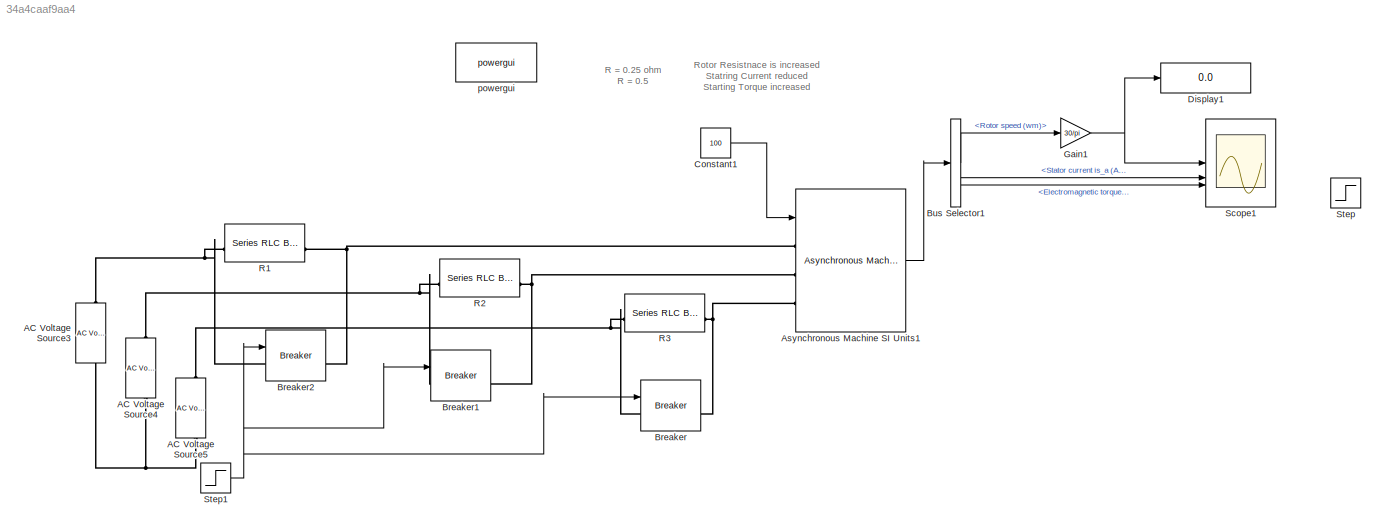
MODEL slx_34a4caaf9aa4
KIND model
CONFIG AbsTol = auto
CONFIG EnableMultiTasking = off
CONFIG FixedStep = auto
CONFIG MaxStep = 1e-4
CONFIG MinStep = auto
CONFIG RelTol = 1e-3
CONFIG SampleTimeConstraint = Unconstrained
CONFIG SolverName = ode23tb
CONFIG StartTime = 0.0
CONFIG StopTime = 10.0
BLOCK [Reference] AC Voltage Source3  REF=spsACVoltageSourceLib/AC Voltage Source
  LibrarySourceBlock = sps_lib/Sources/AC Voltage Source
  SourceBlock = spsACVoltageSourceLib/AC Voltage Source
  SourceType = AC Voltage Source
BLOCK [Reference] AC Voltage Source4  REF=spsACVoltageSourceLib/AC Voltage Source
  LibrarySourceBlock = sps_lib/Sources/AC Voltage Source
  SourceBlock = spsACVoltageSourceLib/AC Voltage Source
  SourceType = AC Voltage Source
BLOCK [Reference] AC Voltage Source5  REF=spsACVoltageSourceLib/AC Voltage Source
  LibrarySourceBlock = sps_lib/Sources/AC Voltage Source
  SourceBlock = spsACVoltageSourceLib/AC Voltage Source
  SourceType = AC Voltage Source
BLOCK [Reference] Asynchronous Machine SI Units1  REF=spsAsynchronousMachineSIUnitsLib/Asynchronous Machine
SI Units
  LibrarySourceBlock = sps_lib/Electrical Machines/Asynchronous Machine\nSI Units
  SourceBlock = spsAsynchronousMachineSIUnitsLib/Asynchronous Machine\nSI Units
  SourceType = Asynchronous Machine
BLOCK [Reference] Breaker  REF=spsBreakerLib/Breaker
  LibrarySourceBlock = sps_lib/Power Grid Elements/Breaker
  SourceBlock = spsBreakerLib/Breaker
  SourceType = Breaker
BLOCK [Reference] Breaker1  REF=spsBreakerLib/Breaker
  LibrarySourceBlock = sps_lib/Power Grid Elements/Breaker
  SourceBlock = spsBreakerLib/Breaker
  SourceType = Breaker
BLOCK [Reference] Breaker2  REF=spsBreakerLib/Breaker
  LibrarySourceBlock = sps_lib/Power Grid Elements/Breaker
  SourceBlock = spsBreakerLib/Breaker
  SourceType = Breaker
BLOCK [BusSelector] Bus Selector1
  OutputSignals = Mechanical.Rotor speed (wm),Stator measurements.Stator current is_a (A),Mechanical.Electromagnetic torque Te (N*m)
BLOCK [Constant] Constant1
  Value = 100
BLOCK [Display] Display1
  Decimation = 1
BLOCK [Gain] Gain1
  Gain = 30/pi
BLOCK [Reference] R1  REF=spsSeriesRLCBranchLib/Series RLC Branch
  LibrarySourceBlock = sps_lib/Passives/Series RLC Branch
  SourceBlock = spsSeriesRLCBranchLib/Series RLC Branch
  SourceType = Series RLC Branch
BLOCK [Reference] R2  REF=spsSeriesRLCBranchLib/Series RLC Branch
  LibrarySourceBlock = sps_lib/Passives/Series RLC Branch
  SourceBlock = spsSeriesRLCBranchLib/Series RLC Branch
  SourceType = Series RLC Branch
BLOCK [Reference] R3  REF=spsSeriesRLCBranchLib/Series RLC Branch
  LibrarySourceBlock = sps_lib/Passives/Series RLC Branch
  SourceBlock = spsSeriesRLCBranchLib/Series RLC Branch
  SourceType = Series RLC Branch
BLOCK [Scope] Scope1
  Floating = off
  NumInputPorts = 3
  ScopeSpecificationString = Simulink.scopes.TimeScopeBlockCfg('CurrentConfiguration', extmgr.ConfigurationSet(extmgr.Configuration('Core','General UI',true),extmgr.Configuration('Core','Source UI',true),extmgr.Configuration('Sources','WiredSimulink',true),extmgr.Configuration('Visuals','Time Domain',true,'SerializedDisplays',{struct('MinYLimReal','-276.31397','MaxYLimReal','1654.19169','YLabelReal','','MinYLimMag',' 0.00000'...<+3373ch>
BLOCK [Step] Step
  SampleTime = 0
  Time = 0.08
BLOCK [Step] Step1
  SampleTime = 0
  Time = 0.1
BLOCK [Reference] powergui  REF=sps_lib/powergui
  LibrarySourceBlock = sps_lib/powergui
  Priority = 1
  SourceBlock = sps_lib/powergui
  SourceType = PSB option menu block
ANNOTATION (root): Rotor Resistnace is increased Statring Current reduced Starting Torque increased
ANNOTATION (root): R = 0.25 ohm R = 0.5
LINE Asynchronous Machine SI Units1:1 -> Bus Selector1:1
LINE Bus Selector1:1 -> Gain1:1
LINE Bus Selector1:2 -> Scope1:2
LINE Bus Selector1:3 -> Scope1:3
LINE Constant1:1 -> Asynchronous Machine SI Units1:1
NET Gain1:1 -> Display1:1, Scope1:1
NET Step1:1 -> Breaker1:1, Breaker2:1, Breaker:1
PNET net1: AC Voltage Source3:LConn1 -- AC Voltage Source4:LConn1 -- AC Voltage Source5:LConn1
PNET net2: AC Voltage Source3:RConn1 -- Breaker2:LConn1 -- R1:LConn1
PNET net3: AC Voltage Source4:RConn1 -- Breaker1:LConn1 -- R2:LConn1
PNET net4: AC Voltage Source5:RConn1 -- Breaker:LConn1 -- R3:LConn1
PNET net5: Asynchronous Machine SI Units1:LConn1 -- Breaker2:RConn1 -- R1:RConn1
PNET net6: Asynchronous Machine SI Units1:LConn2 -- Breaker1:RConn1 -- R2:RConn1
PNET net7: Asynchronous Machine SI Units1:LConn3 -- Breaker:RConn1 -- R3:RConn1
note: NET lines group one-source signal fan-out (src -> all destinations, sorted); 1:1 wires keep LINE; PNET lines group multi-terminal physical nets as a canonical sorted terminal list (undirected conserving connections); 2-terminal nets keep the pairwise PLINE form
